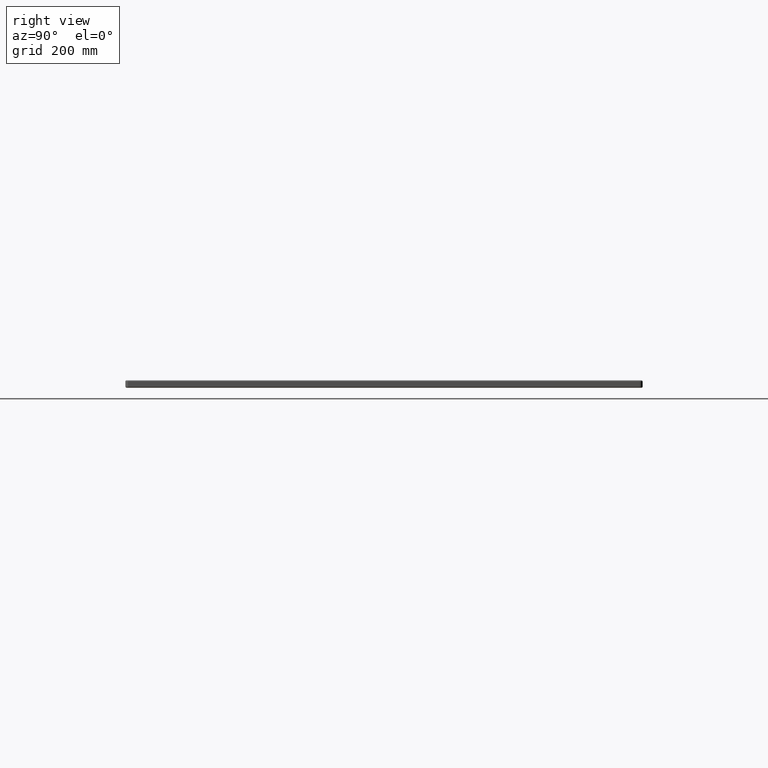
[diagram: clean part render]
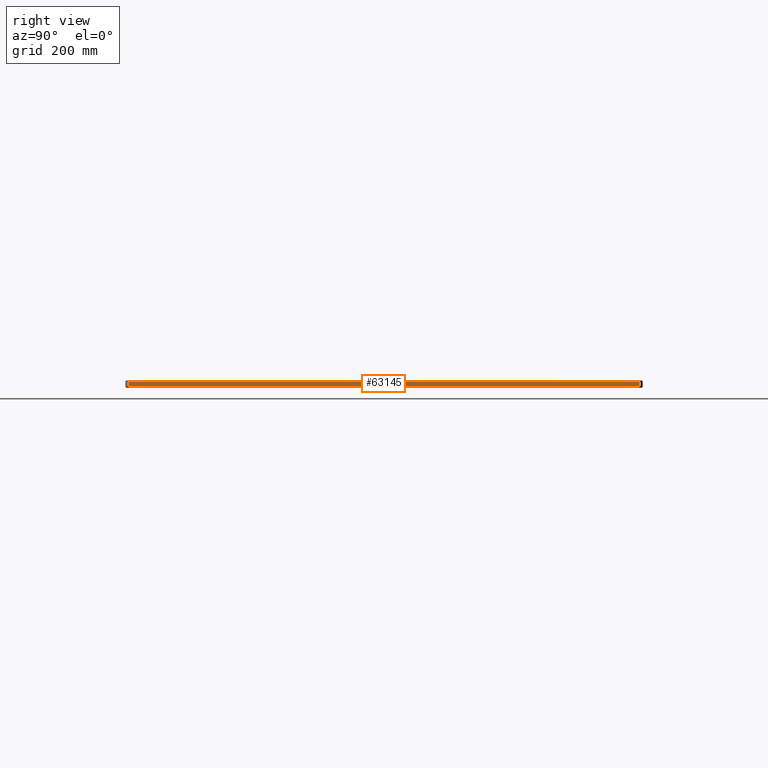
[diagram: same view with one face highlighted and labeled with its STEP entity id]
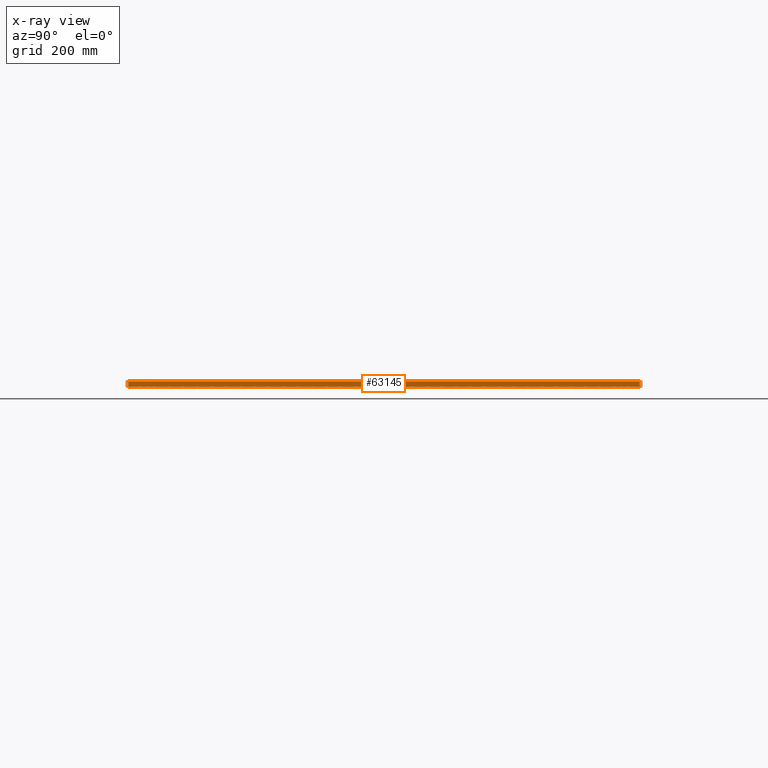
[diagram: x-ray of the same camera — body ghosted, the highlighted face saturated]
A machine part, right view. The second image highlights one B-rep face of the part: STEP entity #63145.
The next image is the same camera in x-ray: the body ghosted, the highlighted face saturated — about 0% of this face is hidden behind the body in this view.
In plain terms, the highlighted planar face has unit normal (1, 0, 0).
Its self-contained STEP definition (entity closure, byte-faithful):
#1832 = LINE ( 'NONE', #61066, #75266 ) ;
#10940 = LINE ( 'NONE', #22405, #48702 ) ;
#12862 = DIRECTION ( 'NONE',  ( -0.0000000000000000000, 1.000000000000000000, 0.0000000000000000000 ) ) ;
#17560 = CARTESIAN_POINT ( 'NONE',  ( 900.0000000000000000, 895.0000000000000000, -11.00000000000000000 ) ) ;
#19665 = CARTESIAN_POINT ( 'NONE',  ( 900.0000000000000000, 0.0000000000000000000, -11.00000000000000000 ) ) ;
#20184 = DIRECTION ( 'NONE',  ( 1.000000000000000000, 0.0000000000000000000, 0.0000000000000000000 ) ) ;
#22405 = CARTESIAN_POINT ( 'NONE',  ( 900.0000000000000000, 5.000000000000004400, -2.000000000000000000 ) ) ;
#26712 = LINE ( 'NONE', #83934, #62346 ) ;
#26724 = EDGE_LOOP ( 'NONE', ( #81251, #73573, #92255, #92081 ) ) ;
#33144 = VERTEX_POINT ( 'NONE', #69017 ) ;
#33807 = CARTESIAN_POINT ( 'NONE',  ( 900.0000000000000000, 0.0000000000000000000, -13.00000000000000000 ) ) ;
#35920 = VERTEX_POINT ( 'NONE', #17560 ) ;
#37191 = EDGE_CURVE ( 'NONE', #35920, #33144, #26712, .T. ) ;
#39479 = FACE_OUTER_BOUND ( 'NONE', #26724, .T. ) ;
#40976 = DIRECTION ( 'NONE',  ( 0.0000000000000000000, 0.0000000000000000000, -1.000000000000000000 ) ) ;
#48702 = VECTOR ( 'NONE', #50411, 1000.000000000000000 ) ;
#50411 = DIRECTION ( 'NONE',  ( -0.0000000000000000000, -1.000000000000000000, 0.0000000000000000000 ) ) ;
#51617 = EDGE_CURVE ( 'NONE', #73463, #35920, #78875, .T. ) ;
#52508 = CARTESIAN_POINT ( 'NONE',  ( 900.0000000000000000, 4.999999999999999100, -2.000000000000000000 ) ) ;
#55615 = PLANE ( 'NONE',  #57199 ) ;
#57199 = AXIS2_PLACEMENT_3D ( 'NONE', #33807, #20184, #40976 ) ;
#60080 = CARTESIAN_POINT ( 'NONE',  ( 900.0000000000000000, 4.999999999999999100, -11.00000000000000000 ) ) ;
#61066 = CARTESIAN_POINT ( 'NONE',  ( 900.0000000000000000, 4.999999999999999100, -13.00000000000000000 ) ) ;
#62346 = VECTOR ( 'NONE', #76784, 1000.000000000000000 ) ;
#63145 = ADVANCED_FACE ( 'NONE', ( #39479 ), #55615, .T. ) ;
#65453 = EDGE_CURVE ( 'NONE', #76738, #73463, #1832, .T. ) ;
#66663 = VECTOR ( 'NONE', #12862, 1000.000000000000000 ) ;
#69017 = CARTESIAN_POINT ( 'NONE',  ( 900.0000000000000000, 895.0000000000000000, -2.000000000000000000 ) ) ;
#69565 = EDGE_CURVE ( 'NONE', #33144, #76738, #10940, .T. ) ;
#73463 = VERTEX_POINT ( 'NONE', #60080 ) ;
#73573 = ORIENTED_EDGE ( 'NONE', *, *, #51617, .T. ) ;
#75266 = VECTOR ( 'NONE', #75344, 1000.000000000000000 ) ;
#75344 = DIRECTION ( 'NONE',  ( 0.0000000000000000000, -0.0000000000000000000, -1.000000000000000000 ) ) ;
#76738 = VERTEX_POINT ( 'NONE', #52508 ) ;
#76784 = DIRECTION ( 'NONE',  ( 0.0000000000000000000, 0.0000000000000000000, 1.000000000000000000 ) ) ;
#78875 = LINE ( 'NONE', #19665, #66663 ) ;
#81251 = ORIENTED_EDGE ( 'NONE', *, *, #65453, .T. ) ;
#83934 = CARTESIAN_POINT ( 'NONE',  ( 900.0000000000000000, 895.0000000000000000, -13.00000000000000000 ) ) ;
#92081 = ORIENTED_EDGE ( 'NONE', *, *, #69565, .T. ) ;
#92255 = ORIENTED_EDGE ( 'NONE', *, *, #37191, .T. ) ;